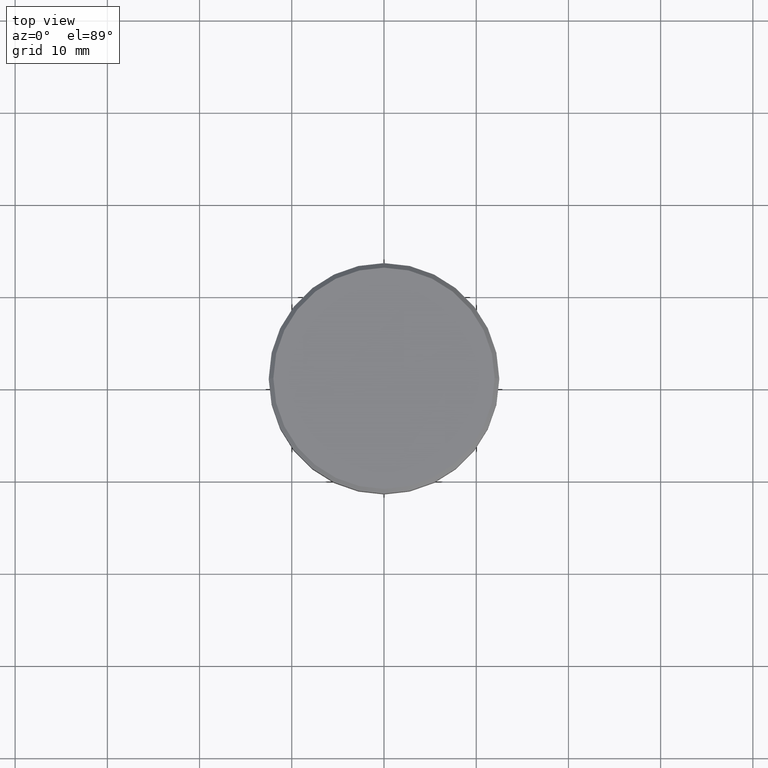
[diagram: clean part render]
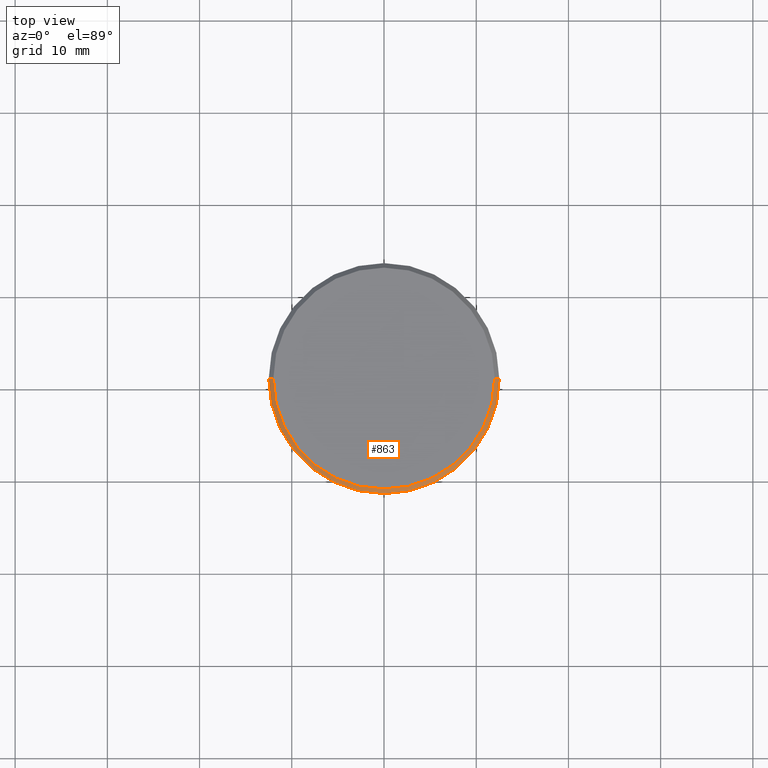
[diagram: same view with one face highlighted and labeled with its STEP entity id]
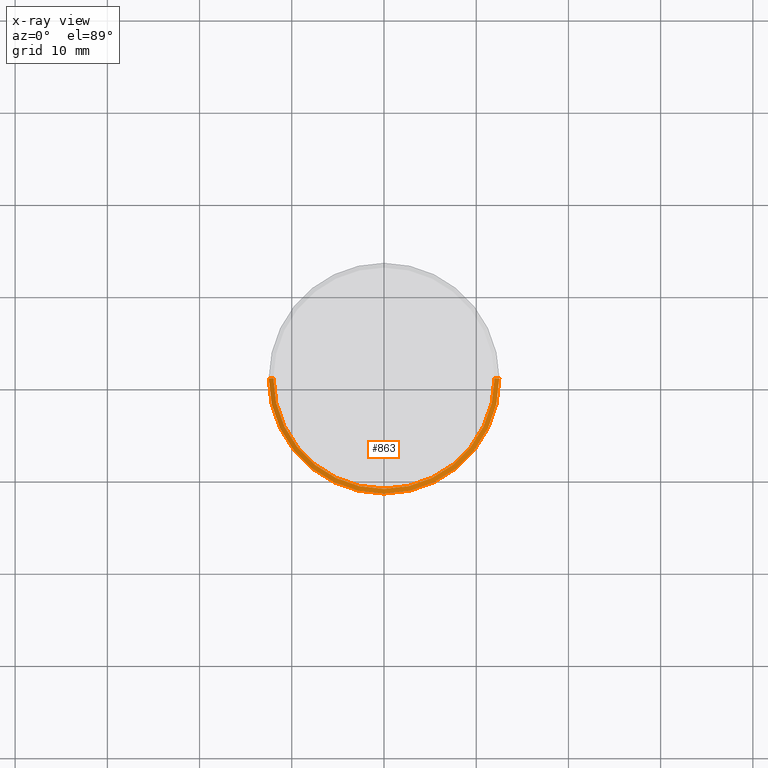
[diagram: x-ray of the same camera — body ghosted, the highlighted face saturated]
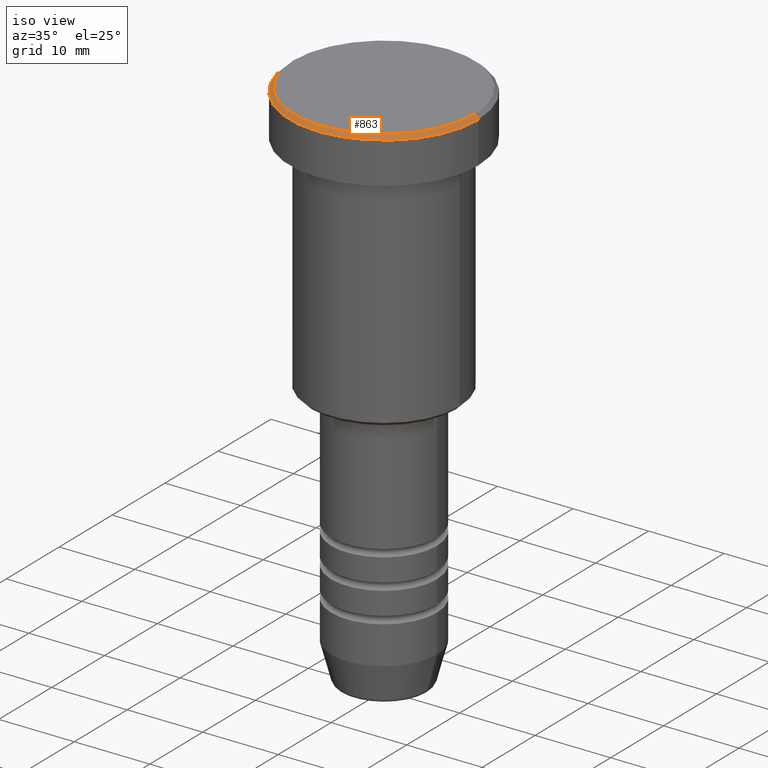
[diagram: same view with one face highlighted and labeled with its STEP entity id]
A machine part, top view. The second image highlights one B-rep face of the part: STEP entity #863.
The next image is the same camera in x-ray: the body ghosted, the highlighted face saturated — about 0% of this face is hidden behind the body in this view.
A second angle (iso view) of the same face is appended — the face is thin or edge-on in the first view.
In plain terms, the highlighted conical surface has half-angle 45 deg.
Its self-contained STEP definition (entity closure, byte-faithful):
#25 = ORIENTED_EDGE ( 'NONE', *, *, #563, .F. ) ;
#64 = LINE ( 'NONE', #804, #576 ) ;
#124 = EDGE_LOOP ( 'NONE', ( #309, #641, #1055, #25 ) ) ;
#130 = CARTESIAN_POINT ( 'NONE',  ( 12.50000000000000000, 0.000000000000000000, -0.5000000000000126565 ) ) ;
#164 = EDGE_CURVE ( 'NONE', #1128, #1031, #475, .T. ) ;
#261 = CONICAL_SURFACE ( 'NONE', #721, 11.99999999999998934, 0.7853981633974465026 ) ;
#275 = DIRECTION ( 'NONE',  ( 1.000000000000000000, 0.000000000000000000, 0.000000000000000000 ) ) ;
#309 = ORIENTED_EDGE ( 'NONE', *, *, #434, .F. ) ;
#315 = DIRECTION ( 'NONE',  ( 1.000000000000000000, 0.000000000000000000, 0.000000000000000000 ) ) ;
#393 = CARTESIAN_POINT ( 'NONE',  ( 0.000000000000000000, 0.000000000000000000, -0.5000000000000126565 ) ) ;
#419 = AXIS2_PLACEMENT_3D ( 'NONE', #393, #660, #275 ) ;
#428 = DIRECTION ( 'NONE',  ( -0.000000000000000000, -0.000000000000000000, 1.000000000000000000 ) ) ;
#434 = EDGE_CURVE ( 'NONE', #1031, #864, #64, .T. ) ;
#436 = AXIS2_PLACEMENT_3D ( 'NONE', #570, #428, #315 ) ;
#475 = CIRCLE ( 'NONE', #436, 11.99999999999998934 ) ;
#542 = CARTESIAN_POINT ( 'NONE',  ( -12.50000000000000000, 1.530808498934191521E-15, -0.5000000000000126565 ) ) ;
#563 = EDGE_CURVE ( 'NONE', #864, #960, #700, .T. ) ;
#570 = CARTESIAN_POINT ( 'NONE',  ( 0.000000000000000000, 0.000000000000000000, 0.000000000000000000 ) ) ;
#576 = VECTOR ( 'NONE', #1162, 999.9999999999998863 ) ;
#592 = CARTESIAN_POINT ( 'NONE',  ( 0.000000000000000000, 0.000000000000000000, 0.000000000000000000 ) ) ;
#601 = DIRECTION ( 'NONE',  ( 0.000000000000000000, 0.000000000000000000, -1.000000000000000000 ) ) ;
#641 = ORIENTED_EDGE ( 'NONE', *, *, #164, .F. ) ;
#660 = DIRECTION ( 'NONE',  ( 0.000000000000000000, 0.000000000000000000, -1.000000000000000000 ) ) ;
#681 = CARTESIAN_POINT ( 'NONE',  ( -11.99999999999998934, 0.000000000000000000, 0.000000000000000000 ) ) ;
#700 = CIRCLE ( 'NONE', #419, 12.50000000000000000 ) ;
#721 = AXIS2_PLACEMENT_3D ( 'NONE', #592, #601, #952 ) ;
#790 = LINE ( 'NONE', #681, #1179 ) ;
#804 = CARTESIAN_POINT ( 'NONE',  ( 11.99999999999998934, 1.469576158976822567E-15, 0.000000000000000000 ) ) ;
#857 = EDGE_CURVE ( 'NONE', #1128, #960, #790, .T. ) ;
#863 = ADVANCED_FACE ( 'NONE', ( #1155 ), #261, .T. ) ;
#864 = VERTEX_POINT ( 'NONE', #130 ) ;
#952 = DIRECTION ( 'NONE',  ( -1.000000000000000000, 0.000000000000000000, 0.000000000000000000 ) ) ;
#960 = VERTEX_POINT ( 'NONE', #542 ) ;
#1015 = CARTESIAN_POINT ( 'NONE',  ( -11.99999999999998934, 0.000000000000000000, 0.000000000000000000 ) ) ;
#1031 = VERTEX_POINT ( 'NONE', #1085 ) ;
#1047 = DIRECTION ( 'NONE',  ( -0.7071067811865462405, 0.000000000000000000, -0.7071067811865489050 ) ) ;
#1055 = ORIENTED_EDGE ( 'NONE', *, *, #857, .T. ) ;
#1085 = CARTESIAN_POINT ( 'NONE',  ( 11.99999999999998934, 1.500192328955507143E-15, 0.000000000000000000 ) ) ;
#1128 = VERTEX_POINT ( 'NONE', #1015 ) ;
#1155 = FACE_OUTER_BOUND ( 'NONE', #124, .T. ) ;
#1162 = DIRECTION ( 'NONE',  ( 0.7071067811865462405, 8.659560562354918067E-17, -0.7071067811865489050 ) ) ;
#1179 = VECTOR ( 'NONE', #1047, 999.9999999999998863 ) ;